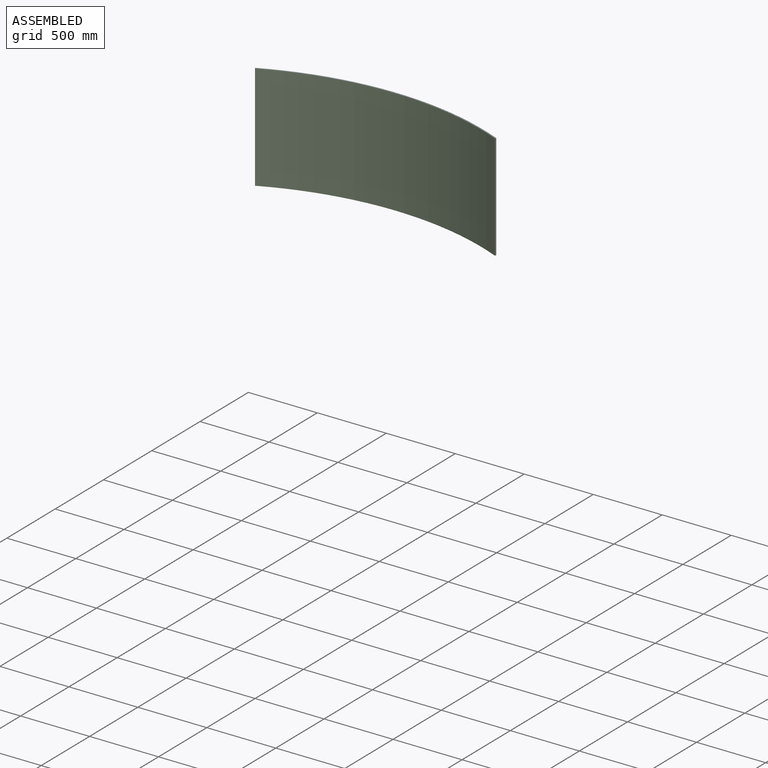
[diagram: assembled view]
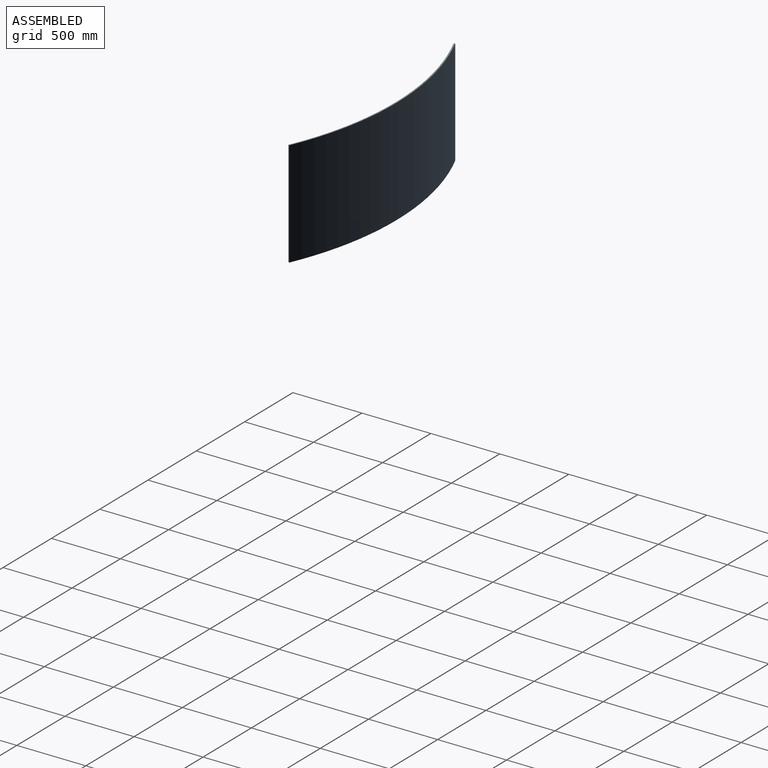
[diagram: assembled view, second angle]
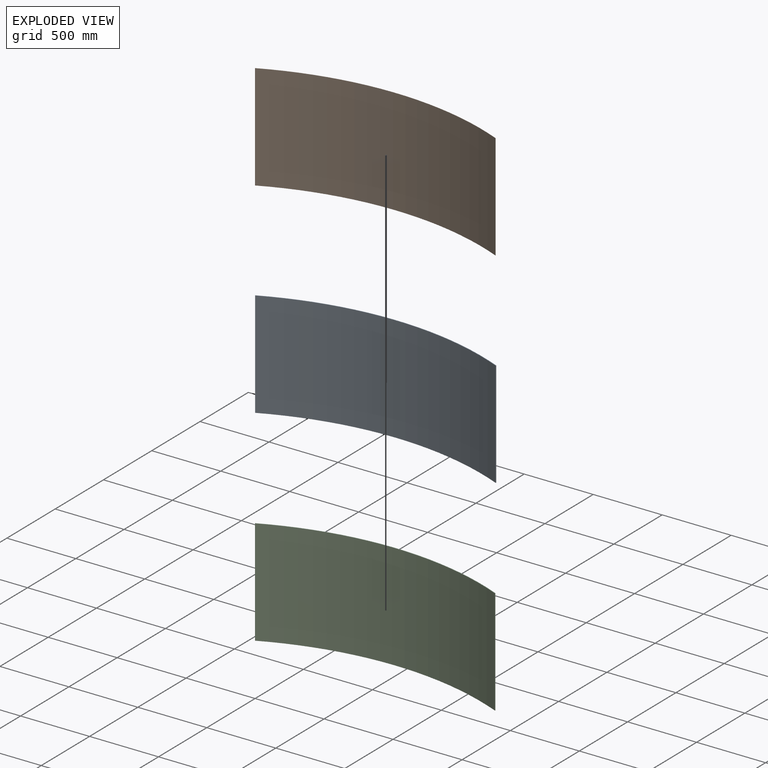
[diagram: exploded view]
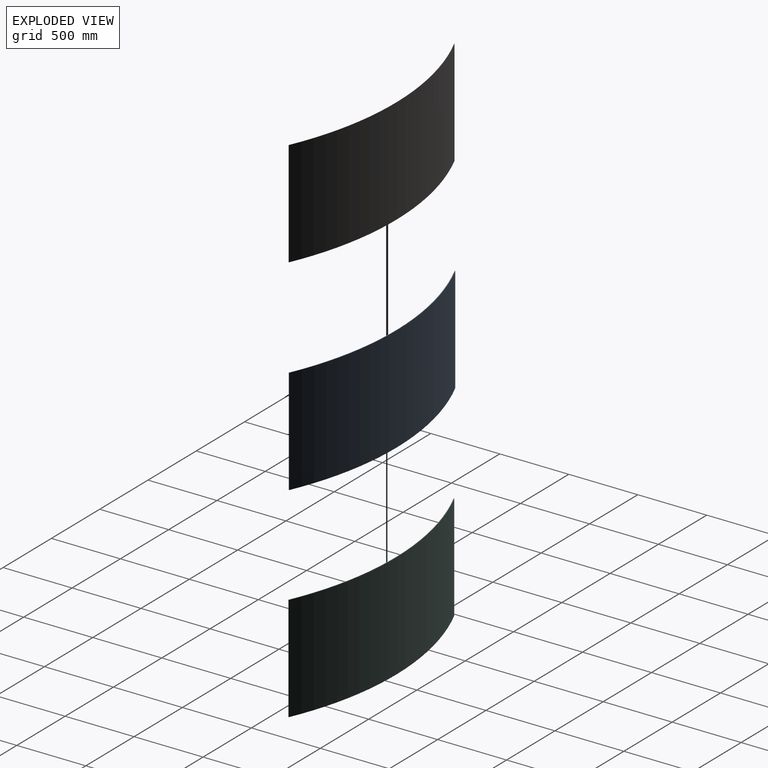
[diagram: exploded view, second angle]
ASSEMBLY  parts=3 mates=2
PART A: 6 faces, bbox 1737.8x196.7x768.4 mm
  f0: cylinder r=2113.74mm len=1734.52mm, axis (0,0,-1), area 1373309.9mm2, adj f1,f3,f4,f5
  f1: plane 768.35x3.63mm, normal (0.92,-0.4,0), area 3044.5mm2, adj f0,f2,f4,f5
  f2: cylinder r=2117.7mm len=1737.78mm, axis (0,0,-1), area 1375884.3mm2, adj f1,f3,f4,f5
  f3: plane 768.35x3.6mm, normal (-0.91,-0.42,0), area 3044.5mm2, adj f0,f2,f4,f5
  f4: plane 1737.78x196.67mm, normal (0,0,1), area 7088.8mm2, adj f0,f1,f2,f3
  f5: plane 1737.78x196.67mm, normal (0,0,-1), area 7088.8mm2, adj f0,f1,f2,f3
PART B: 6 faces, bbox 1734.5x194.1x768.4 mm
  f0: cylinder r=2113.74mm len=1734.52mm, axis (0,0,1), area 1373309.9mm2, adj f1,f3,f4,f5
  f1: plane 768.35x1.43mm, normal (-0.91,-0.42,0), area 1210mm2, adj f0,f2,f4,f5
  f2: cylinder r=2112.16mm len=1733.23mm, axis (0,0,1), area 1372286.8mm2, adj f1,f3,f4,f5
  f3: plane 768.35x1.44mm, normal (0.92,-0.4,0), area 1210mm2, adj f0,f2,f4,f5
  f4: plane 1734.52x194.14mm, normal (0,0,-1), area 2813.7mm2, adj f0,f1,f2,f3
  f5: plane 1734.52x194.14mm, normal (0,0,1), area 2813.7mm2, adj f0,f1,f2,f3
PART C: 6 faces, bbox 1733.2x196.2x768.4 mm
  f0: plane 768.35x3.63mm, normal (0.92,-0.4,0), area 3044.5mm2, adj f1,f3,f4,f5
  f1: cylinder r=2112.16mm len=1733.23mm, axis (0,0,-1), area 1372286.8mm2, adj f0,f2,f4,f5
  f2: plane 768.35x3.6mm, normal (-0.91,-0.42,0), area 3044.5mm2, adj f1,f3,f4,f5
  f3: cylinder r=2108.2mm len=1729.98mm, axis (0,0,-1), area 1369712.4mm2, adj f0,f2,f4,f5
  f4: plane 1733.23x196.16mm, normal (0,0,1), area 7070.3mm2, adj f0,f1,f2,f3
  f5: plane 1733.23x196.16mm, normal (0,0,-1), area 7070.3mm2, adj f0,f1,f2,f3
PLACE A t=(68.81,-385.72,-280.4)mm
PLACE B t=(68.81,-385.72,487.95)mm
PLACE C t=(68.81,-385.72,-280.4)mm
MATE fastened A.f0 <-> B.f0  axis (0,0,-1) through (948.27,-2301.71,103.77)mm
MATE fastened B.f0 <-> C.f1  axis (0,0,1) through (948.27,-2301.71,103.77)mm
